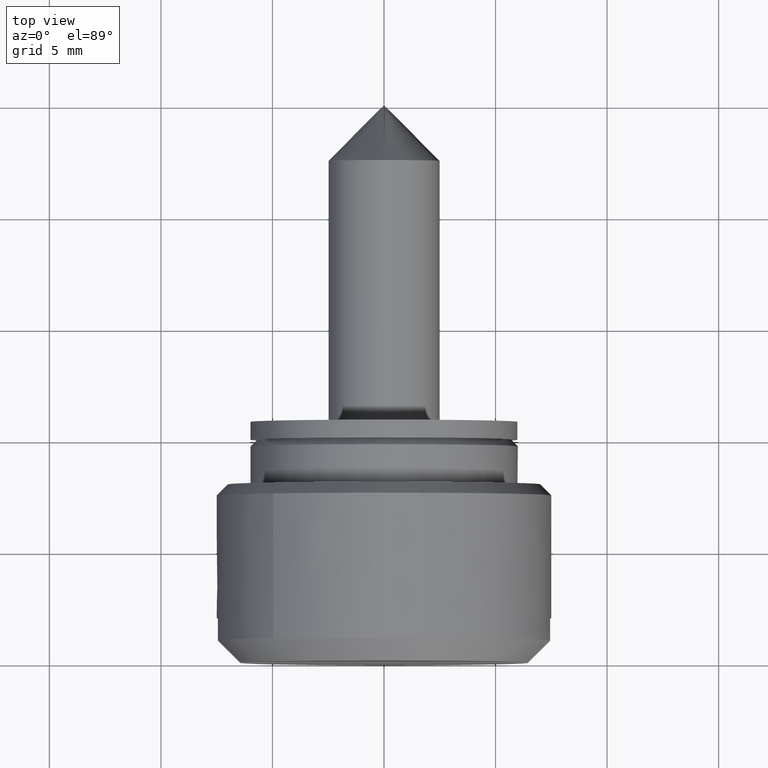
[diagram: clean part render]
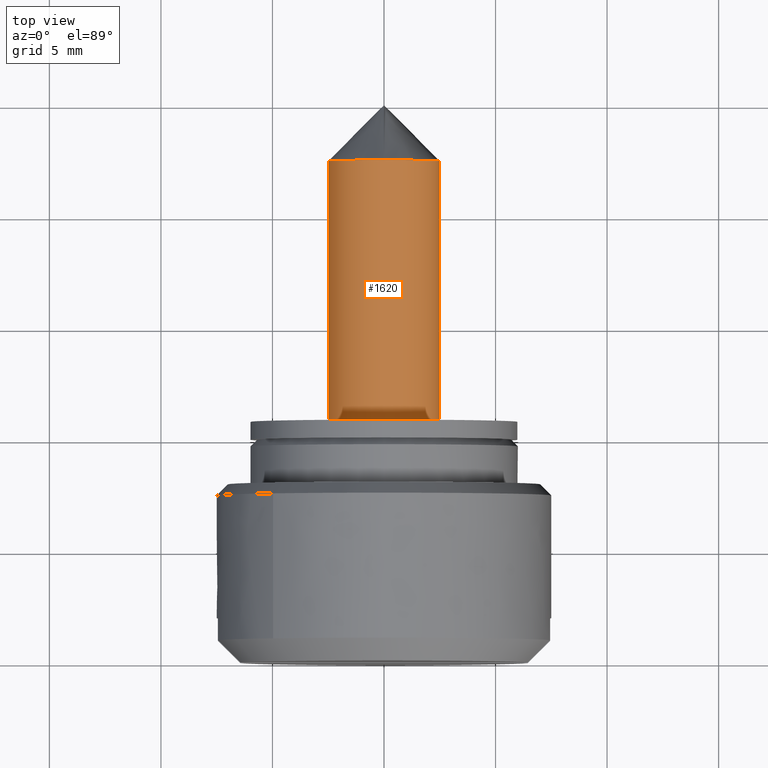
[diagram: same view with one face highlighted and labeled with its STEP entity id]
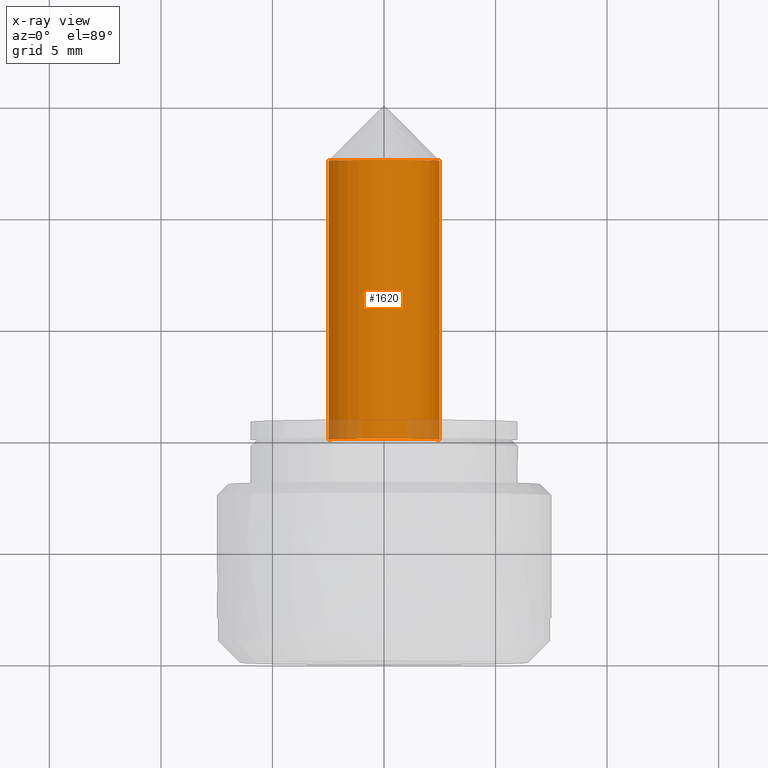
[diagram: x-ray of the same camera — body ghosted, the highlighted face saturated]
A machine part, top view. The second image highlights one B-rep face of the part: STEP entity #1620.
The next image is the same camera in x-ray: the body ghosted, the highlighted face saturated — about 4% of this face is hidden behind the body in this view.
In plain terms, the highlighted face is a freeform B-spline surface patch.
Its self-contained STEP definition (entity closure, byte-faithful):
#1457=CARTESIAN_POINT('',(12.500000000000000,2.482523815906725,0.295085586662429));
#1458=VERTEX_POINT('',#1457);
#1476=CARTESIAN_POINT('',(12.500000000000000,-2.495336996053096,-0.152621348862836));
#1477=VERTEX_POINT('',#1476);
#1491=CARTESIAN_POINT('',(1.942890E-016,-2.495336996053096,-0.152621348862836));
#1492=VERTEX_POINT('',#1491);
#1493=CARTESIAN_POINT('',(12.500000000000000,-2.495336996053096,-0.152621348862836));
#1494=CARTESIAN_POINT('',(1.942890E-016,-2.495336996053096,-0.152621348862836));
#1495=QUASI_UNIFORM_CURVE('',1,(#1493,#1494),.UNSPECIFIED.,.F.,.U.);
#1496=EDGE_CURVE('',#1477,#1492,#1495,.T.);
#1513=CARTESIAN_POINT('',(1.987600E-016,2.482523815906725,0.295085586662429));
#1514=VERTEX_POINT('',#1513);
#1530=CARTESIAN_POINT('',(12.500000000000000,2.482523815906725,0.295085586662429));
#1531=CARTESIAN_POINT('',(1.987600E-016,2.482523815906725,0.295085586662429));
#1532=QUASI_UNIFORM_CURVE('',1,(#1530,#1531),.UNSPECIFIED.,.F.,.U.);
#1533=EDGE_CURVE('',#1458,#1514,#1532,.T.);
#1538=CARTESIAN_POINT('',(12.812500000000011,-2.495336996054667,-0.152621348837143));
#1539=CARTESIAN_POINT('',(12.812500000000005,-2.647958344891809,2.342715647217524));
#1540=CARTESIAN_POINT('',(12.812500000000011,-0.152621348837143,2.495336996054667));
#1541=CARTESIAN_POINT('',(12.812500000000005,2.203858727098751,2.639465491831319));
#1542=CARTESIAN_POINT('',(12.812500000000009,2.482523815909166,0.295085586641896));
#1543=CARTESIAN_POINT('',(-0.320312500000000,-2.495336996054667,-0.152621348837143));
#1544=CARTESIAN_POINT('',(-0.320312500000000,-2.647958344891809,2.342715647217524));
#1545=CARTESIAN_POINT('',(-0.320312500000000,-0.152621348837143,2.495336996054667));
#1546=CARTESIAN_POINT('',(-0.320312500000000,2.203858727098751,2.639465491831319));
#1547=CARTESIAN_POINT('',(-0.320312500000000,2.482523815909166,0.295085586641896));
#1555=(BOUNDED_SURFACE()B_SPLINE_SURFACE(2,1,((#1538,#1543),(#1539,#1544),(#1540,#1545),(#1541,#1546),(#1542,#1547)),.UNSPECIFIED.,.F.,.F.,.U.)B_SPLINE_SURFACE_WITH_KNOTS((3,2,3),(2,2),(0.0,4.142135623730949,8.118585822512660),(0.0,13.132812500000011),.UNSPECIFIED.)GEOMETRIC_REPRESENTATION_ITEM()RATIONAL_B_SPLINE_SURFACE(((1.0,1.0),(0.707106781186548,0.707106781186548),(1.0,1.0),(0.718822509939086,0.718822509939086),(0.977505800795127,0.977505800795127)))REPRESENTATION_ITEM('')SURFACE());
#1556=CARTESIAN_POINT('',(12.500000000000011,0.0,2.500000000000007));
#1557=VERTEX_POINT('',#1556);
#1558=CARTESIAN_POINT('',(12.500000000000000,0.0,2.500000000000000));
#1559=CARTESIAN_POINT('',(12.499999999999998,2.220436314841433,2.500000000000000));
#1560=CARTESIAN_POINT('',(12.500000000000000,2.482523815906725,0.295085586662429));
#1568=(BOUNDED_CURVE()B_SPLINE_CURVE(2,(#1558,#1559,#1560),.UNSPECIFIED.,.F.,.U.)B_SPLINE_CURVE_WITH_KNOTS((3,3),(0.0,0.459124947025698),.UNSPECIFIED.)CURVE()GEOMETRIC_REPRESENTATION_ITEM()RATIONAL_B_SPLINE_CURVE((1.0,0.731050832856175,0.956026754182406))REPRESENTATION_ITEM(''));
#1569=EDGE_CURVE('',#1557,#1458,#1568,.T.);
#1570=ORIENTED_EDGE('',*,*,#1569,.T.);
#1571=ORIENTED_EDGE('',*,*,#1533,.T.);
#1572=CARTESIAN_POINT('',(0.0,0.0,2.500000000000000));
#1573=VERTEX_POINT('',#1572);
#1574=CARTESIAN_POINT('',(0.0,0.0,2.500000000000000));
#1575=CARTESIAN_POINT('',(0.0,2.220436314841433,2.500000000000000));
#1576=CARTESIAN_POINT('',(1.987600E-016,2.482523815906725,0.295085586662429));
#1584=(BOUNDED_CURVE()B_SPLINE_CURVE(2,(#1574,#1575,#1576),.UNSPECIFIED.,.F.,.U.)B_SPLINE_CURVE_WITH_KNOTS((3,3),(0.0,0.229562473512849),.UNSPECIFIED.)CURVE()GEOMETRIC_REPRESENTATION_ITEM()RATIONAL_B_SPLINE_CURVE((1.0,0.731050832856175,0.956026754182406))REPRESENTATION_ITEM(''));
#1585=EDGE_CURVE('',#1573,#1514,#1584,.T.);
#1586=ORIENTED_EDGE('',*,*,#1585,.F.);
#1587=CARTESIAN_POINT('',(1.942890E-016,-2.495336996053095,-0.152621348862836));
#1588=CARTESIAN_POINT('',(0.0,-2.500000000000000,-0.076381908272237));
#1589=CARTESIAN_POINT('',(0.0,-2.500000000000000,0.0));
#1590=CARTESIAN_POINT('',(0.0,-2.500000000000000,2.500000000000000));
#1591=CARTESIAN_POINT('',(0.0,0.0,2.500000000000000));
#1599=(BOUNDED_CURVE()B_SPLINE_CURVE(2,(#1587,#1588,#1589,#1590,#1591),.UNSPECIFIED.,.F.,.U.)B_SPLINE_CURVE_WITH_KNOTS((3,2,3),(0.739332962238415,0.750000000000000,1.0),.UNSPECIFIED.)CURVE()GEOMETRIC_REPRESENTATION_ITEM()RATIONAL_B_SPLINE_CURVE((0.976072041665586,0.987502787899219,1.0,0.707106781186548,1.0))REPRESENTATION_ITEM(''));
#1600=EDGE_CURVE('',#1492,#1573,#1599,.T.);
#1601=ORIENTED_EDGE('',*,*,#1600,.F.);
#1602=ORIENTED_EDGE('',*,*,#1496,.F.);
#1603=CARTESIAN_POINT('',(12.500000000000000,-2.495336996053095,-0.152621348862836));
#1604=CARTESIAN_POINT('',(12.500000000000004,-2.500000000000000,-0.076381908272237));
#1605=CARTESIAN_POINT('',(12.500000000000000,-2.500000000000000,0.0));
#1606=CARTESIAN_POINT('',(12.500000000000000,-2.500000000000000,2.500000000000000));
#1607=CARTESIAN_POINT('',(12.500000000000000,0.0,2.500000000000000));
#1615=(BOUNDED_CURVE()B_SPLINE_CURVE(2,(#1603,#1604,#1605,#1606,#1607),.UNSPECIFIED.,.F.,.U.)B_SPLINE_CURVE_WITH_KNOTS((3,2,3),(0.478665924476830,0.500000000000000,1.0),.UNSPECIFIED.)CURVE()GEOMETRIC_REPRESENTATION_ITEM()RATIONAL_B_SPLINE_CURVE((0.976072041665586,0.987502787899219,1.0,0.707106781186548,1.0))REPRESENTATION_ITEM(''));
#1616=EDGE_CURVE('',#1477,#1557,#1615,.T.);
#1617=ORIENTED_EDGE('',*,*,#1616,.T.);
#1618=EDGE_LOOP('',(#1570,#1571,#1586,#1601,#1602,#1617));
#1619=FACE_OUTER_BOUND('',#1618,.T.);
#1620=ADVANCED_FACE('',(#1619),#1555,.T.);